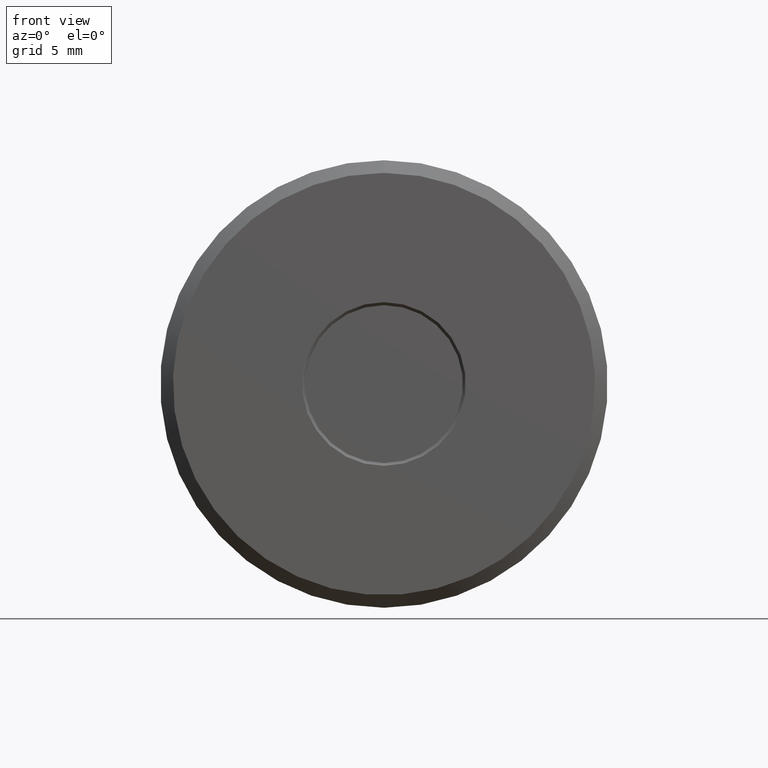
[diagram: clean part render]
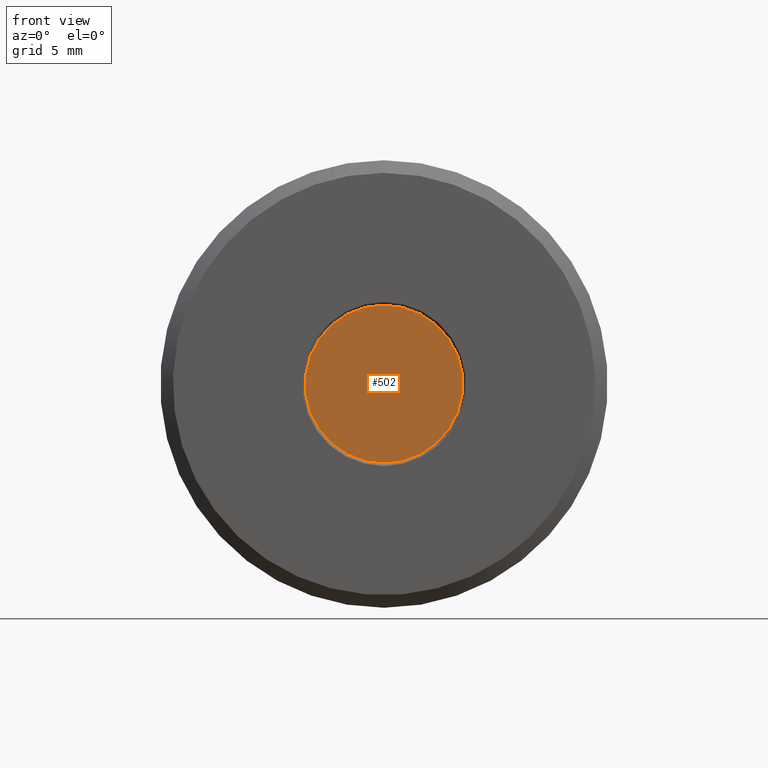
[diagram: same view with one face highlighted and labeled with its STEP entity id]
A machine part, front view. The second image highlights one B-rep face of the part: STEP entity #502.
In plain terms, the highlighted planar face has unit normal (0, -1, 0).
Its self-contained STEP definition (entity closure, byte-faithful):
#10 = DIRECTION ( 'NONE',  ( 0.0000000000000000000, 0.0000000000000000000, 1.000000000000000000 ) ) ;
#12 = DIRECTION ( 'NONE',  ( -0.0000000000000000000, 1.000000000000000000, -0.0000000000000000000 ) ) ;
#21 = CARTESIAN_POINT ( 'NONE',  ( 0.0000000000000000000, 0.0000000000000000000, 0.0000000000000000000 ) ) ;
#60 = AXIS2_PLACEMENT_3D ( 'NONE', #21, #12, #10 ) ;
#73 = EDGE_LOOP ( 'NONE', ( #160 ) ) ;
#142 = VERTEX_POINT ( 'NONE', #315 ) ;
#160 = ORIENTED_EDGE ( 'NONE', *, *, #258, .F. ) ;
#258 = EDGE_CURVE ( 'NONE', #142, #142, #369, .T. ) ;
#288 = PLANE ( 'NONE',  #364 ) ;
#315 = CARTESIAN_POINT ( 'NONE',  ( 0.0000000000000000000, 0.0000000000000000000, 0.1873749999999988500 ) ) ;
#364 = AXIS2_PLACEMENT_3D ( 'NONE', #371, #494, #438 ) ;
#369 = CIRCLE ( 'NONE', #60, 0.1873749999999988500 ) ;
#371 = CARTESIAN_POINT ( 'NONE',  ( -0.1873749999999988500, 0.0000000000000000000, 0.0000000000000000000 ) ) ;
#428 = FACE_OUTER_BOUND ( 'NONE', #73, .T. ) ;
#438 = DIRECTION ( 'NONE',  ( 0.0000000000000000000, -0.0000000000000000000, -1.000000000000000000 ) ) ;
#494 = DIRECTION ( 'NONE',  ( 0.0000000000000000000, -1.000000000000000000, 0.0000000000000000000 ) ) ;
#502 = ADVANCED_FACE ( 'NONE', ( #428 ), #288, .T. ) ;